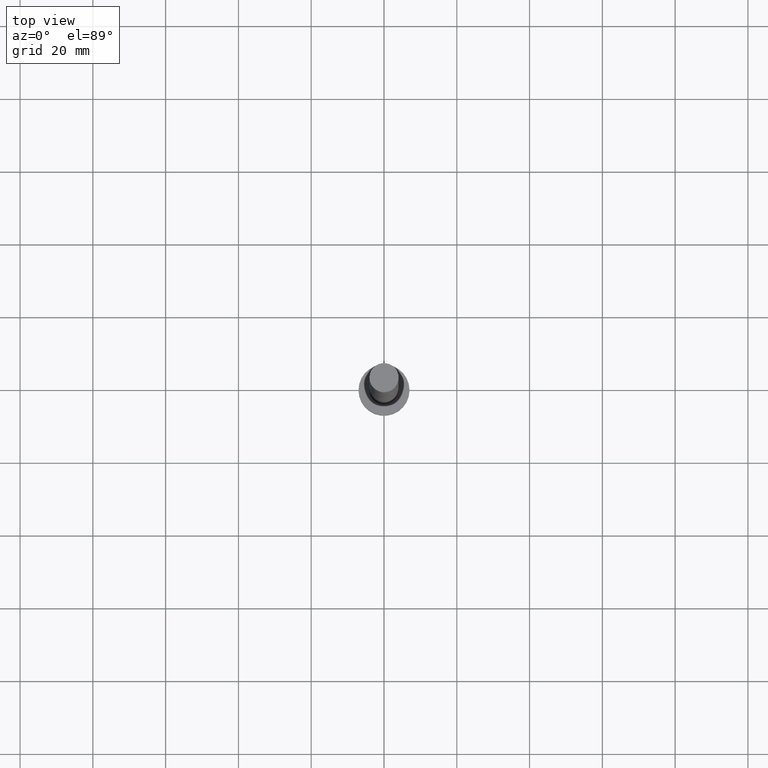
[diagram: clean part render]
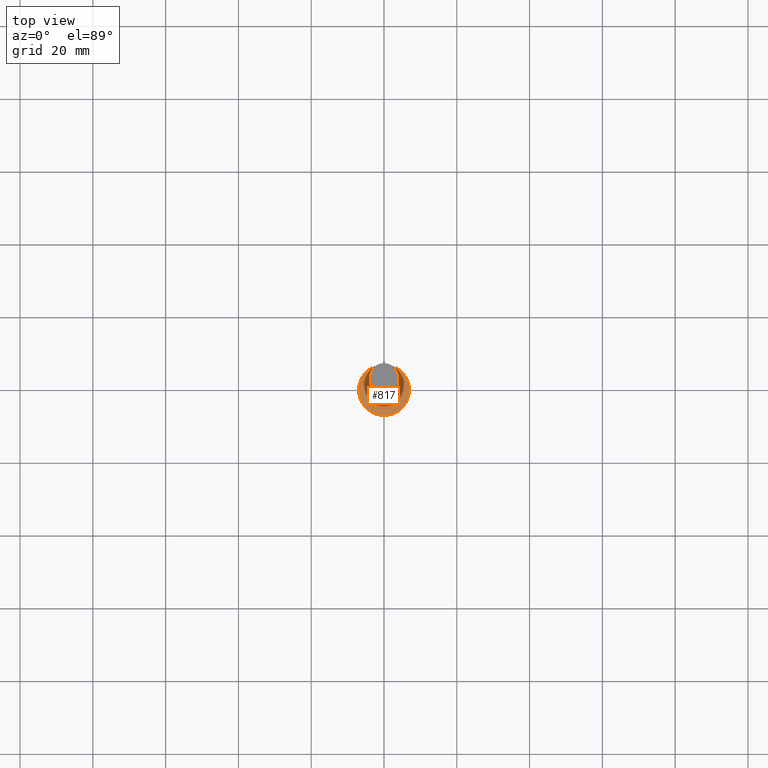
[diagram: same view with one face highlighted and labeled with its STEP entity id]
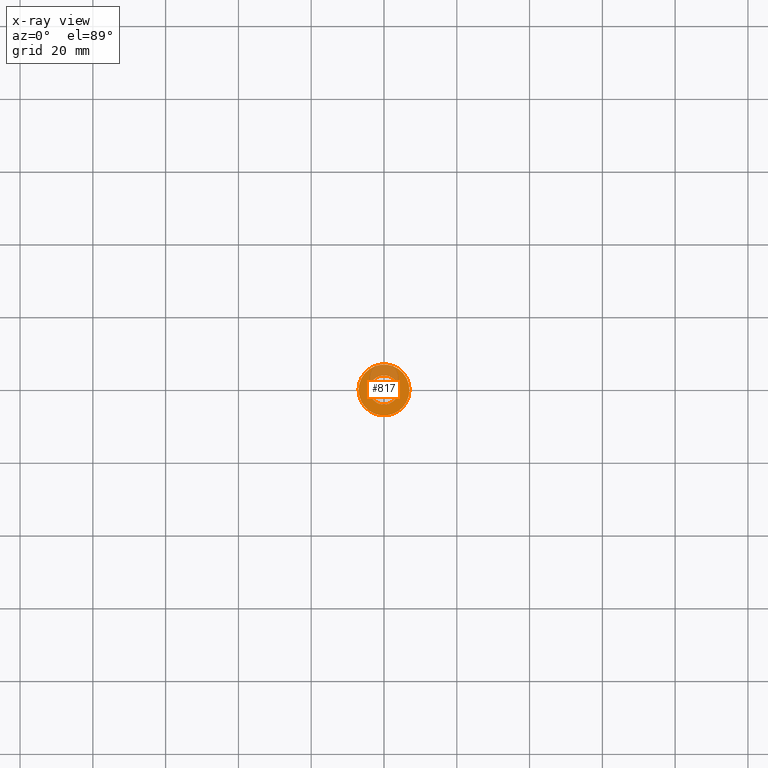
[diagram: x-ray of the same camera — body ghosted, the highlighted face saturated]
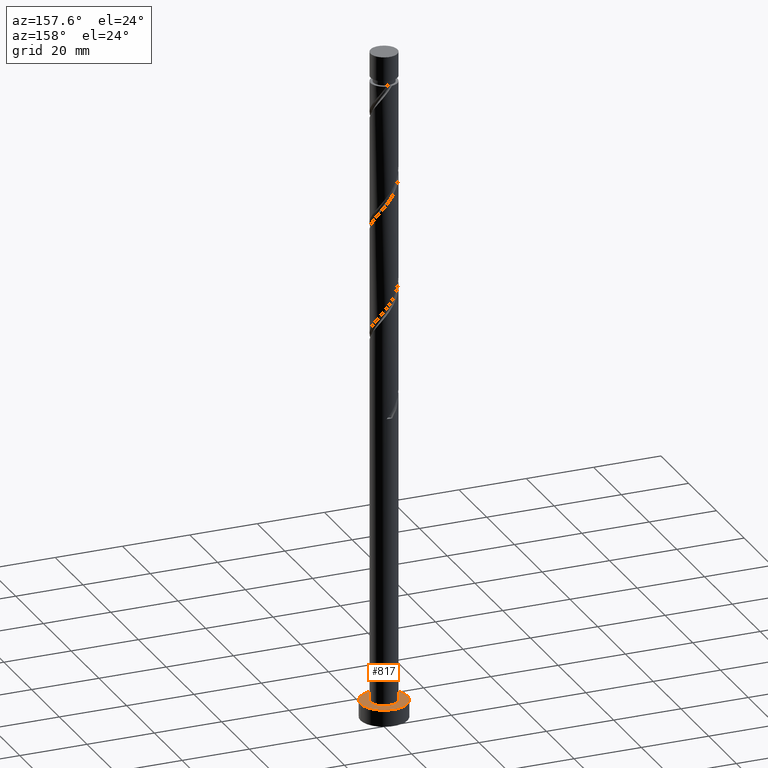
[diagram: same view with one face highlighted and labeled with its STEP entity id]
A machine part, top view. The second image highlights one B-rep face of the part: STEP entity #817.
The next image is the same camera in x-ray: the body ghosted, the highlighted face saturated — about 25% of this face is hidden behind the body in this view.
A second angle (auxiliary view) of the same face is appended — the face is thin or edge-on in the first view.
In plain terms, the highlighted planar face has unit normal (0, 0, 1).
Its self-contained STEP definition (entity closure, byte-faithful):
#26 = EDGE_CURVE ( 'NONE', #1149, #1456, #157, .T. ) ;
#76 = DIRECTION ( 'NONE',  ( 0.000000000000000000, 0.000000000000000000, 1.000000000000000000 ) ) ;
#85 = CARTESIAN_POINT ( 'NONE',  ( 0.000000000000000000, 0.000000000000000000, 5.000000000000000000 ) ) ;
#96 = DIRECTION ( 'NONE',  ( 1.000000000000000000, 0.000000000000000000, 0.000000000000000000 ) ) ;
#157 = CIRCLE ( 'NONE', #184, 4.000000000000000000 ) ;
#184 = AXIS2_PLACEMENT_3D ( 'NONE', #732, #1655, #1529 ) ;
#300 = DIRECTION ( 'NONE',  ( 1.000000000000000000, 0.000000000000000000, 0.000000000000000000 ) ) ;
#315 = CARTESIAN_POINT ( 'NONE',  ( 0.000000000000000000, 0.000000000000000000, 5.000000000000000000 ) ) ;
#328 = AXIS2_PLACEMENT_3D ( 'NONE', #426, #1539, #300 ) ;
#330 = DIRECTION ( 'NONE',  ( 0.000000000000000000, 0.000000000000000000, 1.000000000000000000 ) ) ;
#392 = ORIENTED_EDGE ( 'NONE', *, *, #763, .T. ) ;
#426 = CARTESIAN_POINT ( 'NONE',  ( 0.000000000000000000, 0.000000000000000000, 5.000000000000000000 ) ) ;
#452 = CARTESIAN_POINT ( 'NONE',  ( -4.000000000000000000, 0.000000000000000000, 5.000000000000000000 ) ) ;
#497 = FACE_OUTER_BOUND ( 'NONE', #1513, .T. ) ;
#498 = CIRCLE ( 'NONE', #612, 7.000000000000000000 ) ;
#548 = EDGE_CURVE ( 'NONE', #948, #1645, #797, .T. ) ;
#612 = AXIS2_PLACEMENT_3D ( 'NONE', #315, #777, #96 ) ;
#732 = CARTESIAN_POINT ( 'NONE',  ( 0.000000000000000000, 0.000000000000000000, 5.000000000000000000 ) ) ;
#763 = EDGE_CURVE ( 'NONE', #1645, #948, #498, .T. ) ;
#777 = DIRECTION ( 'NONE',  ( 0.000000000000000000, 0.000000000000000000, 1.000000000000000000 ) ) ;
#797 = CIRCLE ( 'NONE', #328, 7.000000000000000000 ) ;
#817 = ADVANCED_FACE ( 'NONE', ( #1061, #497 ), #1170, .T. ) ;
#874 = ORIENTED_EDGE ( 'NONE', *, *, #548, .T. ) ;
#880 = EDGE_CURVE ( 'NONE', #1456, #1149, #1100, .T. ) ;
#948 = VERTEX_POINT ( 'NONE', #1746 ) ;
#1050 = DIRECTION ( 'NONE',  ( 1.000000000000000000, 0.000000000000000000, -0.000000000000000000 ) ) ;
#1061 = FACE_BOUND ( 'NONE', #1167, .T. ) ;
#1100 = CIRCLE ( 'NONE', #1244, 4.000000000000000000 ) ;
#1149 = VERTEX_POINT ( 'NONE', #452 ) ;
#1152 = CARTESIAN_POINT ( 'NONE',  ( 0.000000000000000000, 0.000000000000000000, 5.000000000000000000 ) ) ;
#1167 = EDGE_LOOP ( 'NONE', ( #1588, #1499 ) ) ;
#1170 = PLANE ( 'NONE',  #1271 ) ;
#1182 = CARTESIAN_POINT ( 'NONE',  ( 7.000000000000000000, 8.572527594031473190E-16, 5.000000000000000000 ) ) ;
#1193 = DIRECTION ( 'NONE',  ( 1.000000000000000000, 0.000000000000000000, 0.000000000000000000 ) ) ;
#1244 = AXIS2_PLACEMENT_3D ( 'NONE', #85, #330, #1193 ) ;
#1271 = AXIS2_PLACEMENT_3D ( 'NONE', #1152, #76, #1050 ) ;
#1435 = CARTESIAN_POINT ( 'NONE',  ( 4.000000000000000000, 4.898587196589412829E-16, 5.000000000000000000 ) ) ;
#1456 = VERTEX_POINT ( 'NONE', #1435 ) ;
#1499 = ORIENTED_EDGE ( 'NONE', *, *, #880, .F. ) ;
#1513 = EDGE_LOOP ( 'NONE', ( #874, #392 ) ) ;
#1529 = DIRECTION ( 'NONE',  ( 1.000000000000000000, 0.000000000000000000, 0.000000000000000000 ) ) ;
#1539 = DIRECTION ( 'NONE',  ( 0.000000000000000000, 0.000000000000000000, 1.000000000000000000 ) ) ;
#1588 = ORIENTED_EDGE ( 'NONE', *, *, #26, .F. ) ;
#1645 = VERTEX_POINT ( 'NONE', #1182 ) ;
#1655 = DIRECTION ( 'NONE',  ( 0.000000000000000000, 0.000000000000000000, 1.000000000000000000 ) ) ;
#1746 = CARTESIAN_POINT ( 'NONE',  ( -7.000000000000000000, 0.000000000000000000, 5.000000000000000000 ) ) ;